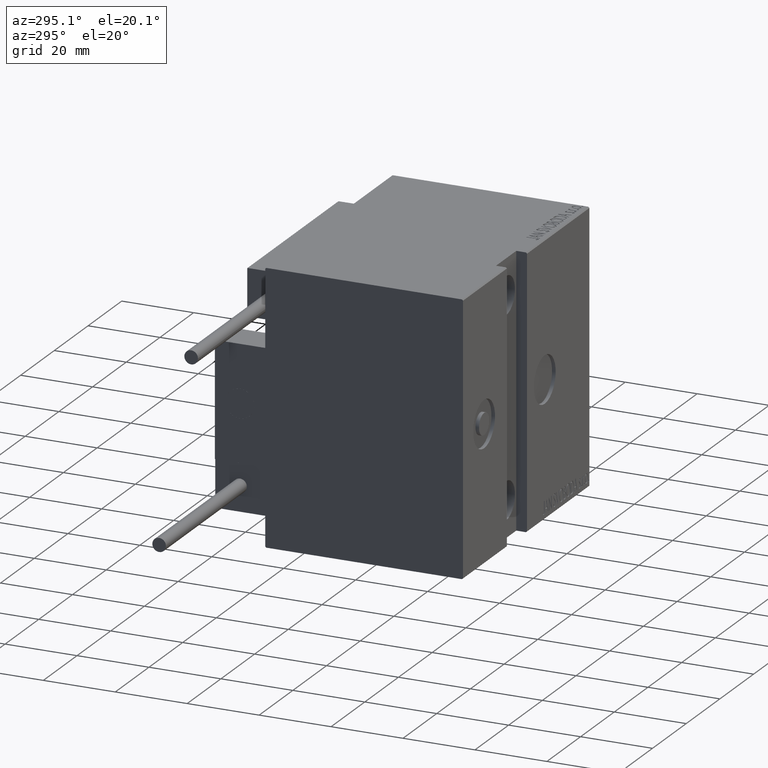
[diagram: clean part render]
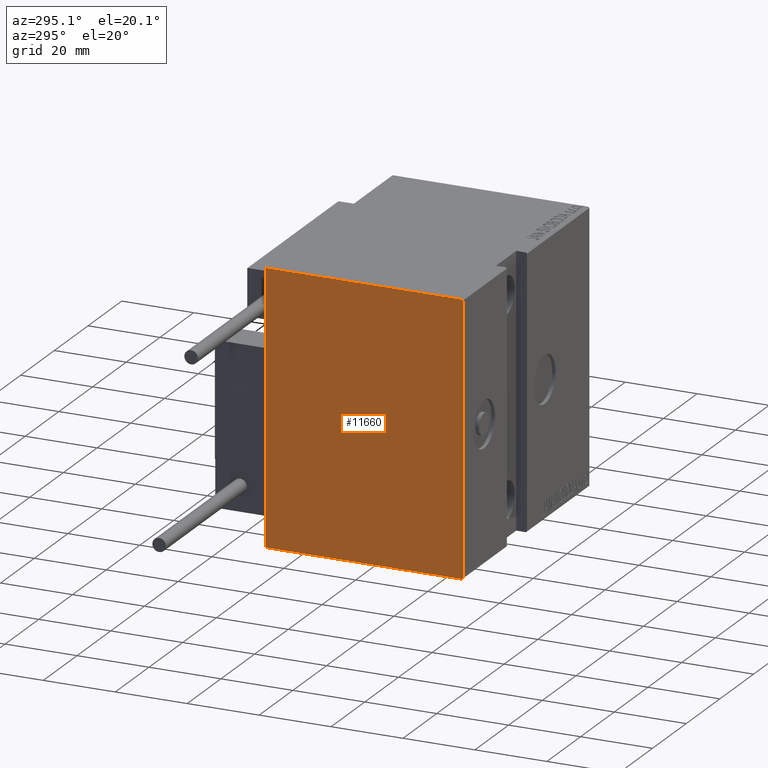
[diagram: same view with one face highlighted and labeled with its STEP entity id]
A machine part, auxiliary view. The second image highlights one B-rep face of the part: STEP entity #11660.
In plain terms, the highlighted planar face has unit normal (-1, 0, 0).
Its self-contained STEP definition (entity closure, byte-faithful):
#897 = EDGE_CURVE ( 'NONE', #25654, #10043, #5686, .T. ) ;
#1547 = VERTEX_POINT ( 'NONE', #36604 ) ;
#1871 = DIRECTION ( 'NONE',  ( 0.000000000000000000, 0.000000000000000000, -1.000000000000000000 ) ) ;
#2066 = CARTESIAN_POINT ( 'NONE',  ( 75.00000000000000000, -32.34999999999983800, 32.35000000000021458 ) ) ;
#2413 = VERTEX_POINT ( 'NONE', #43234 ) ;
#2478 = VECTOR ( 'NONE', #17153, 1000.000000000000000 ) ;
#2761 = EDGE_CURVE ( 'NONE', #10043, #27227, #7755, .T. ) ;
#3023 = EDGE_CURVE ( 'NONE', #5045, #25654, #30017, .T. ) ;
#3474 = DIRECTION ( 'NONE',  ( 0.000000000000000000, 0.000000000000000000, -1.000000000000000000 ) ) ;
#3713 = CARTESIAN_POINT ( 'NONE',  ( 75.00000000000000000, -27.50000000000000000, 37.49999999999999289 ) ) ;
#3941 = ORIENTED_EDGE ( 'NONE', *, *, #897, .T. ) ;
#5045 = VERTEX_POINT ( 'NONE', #40377 ) ;
#5167 = LINE ( 'NONE', #5904, #2478 ) ;
#5686 = LINE ( 'NONE', #30192, #45226 ) ;
#5836 = LINE ( 'NONE', #32877, #17830 ) ;
#5904 = CARTESIAN_POINT ( 'NONE',  ( 75.00000000000000000, 27.49999999999999645, 37.50000000000000711 ) ) ;
#6299 = VECTOR ( 'NONE', #24935, 1000.000000000000000 ) ;
#7755 = LINE ( 'NONE', #42067, #30260 ) ;
#9822 = DIRECTION ( 'NONE',  ( 0.000000000000000000, -0.7071067811865515695, -0.7071067811865435759 ) ) ;
#9975 = VERTEX_POINT ( 'NONE', #33522 ) ;
#10043 = VERTEX_POINT ( 'NONE', #42502 ) ;
#11660 = ADVANCED_FACE ( 'NONE', ( #36402 ), #32648, .T. ) ;
#12236 = EDGE_CURVE ( 'NONE', #2413, #1547, #46239, .T. ) ;
#13523 = ORIENTED_EDGE ( 'NONE', *, *, #25399, .T. ) ;
#14989 = EDGE_CURVE ( 'NONE', #9975, #5045, #47866, .T. ) ;
#16178 = DIRECTION ( 'NONE',  ( -0.000000000000000000, -0.7071067811865474617, 0.7071067811865474617 ) ) ;
#16305 = AXIS2_PLACEMENT_3D ( 'NONE', #17585, #16600, #1871 ) ;
#16600 = DIRECTION ( 'NONE',  ( 1.000000000000000000, 0.000000000000000000, 0.000000000000000000 ) ) ;
#17153 = DIRECTION ( 'NONE',  ( 0.000000000000000000, -1.000000000000000000, -2.523234146875355998E-16 ) ) ;
#17585 = CARTESIAN_POINT ( 'NONE',  ( 75.00000000000000000, 0.000000000000000000, 0.000000000000000000 ) ) ;
#17830 = VECTOR ( 'NONE', #44375, 1000.000000000000000 ) ;
#21365 = EDGE_LOOP ( 'NONE', ( #42839, #43623, #47152, #24726, #13523, #41028, #27816, #3941 ) ) ;
#24196 = LINE ( 'NONE', #39984, #6299 ) ;
#24726 = ORIENTED_EDGE ( 'NONE', *, *, #12236, .T. ) ;
#24935 = DIRECTION ( 'NONE',  ( 0.000000000000000000, -9.251858538542970348E-17, 1.000000000000000000 ) ) ;
#25399 = EDGE_CURVE ( 'NONE', #1547, #9975, #5167, .T. ) ;
#25654 = VERTEX_POINT ( 'NONE', #41871 ) ;
#27227 = VERTEX_POINT ( 'NONE', #45941 ) ;
#27430 = VECTOR ( 'NONE', #16178, 1000.000000000000114 ) ;
#27816 = ORIENTED_EDGE ( 'NONE', *, *, #3023, .T. ) ;
#28236 = EDGE_CURVE ( 'NONE', #27227, #36647, #5836, .T. ) ;
#30017 = LINE ( 'NONE', #3713, #31543 ) ;
#30192 = CARTESIAN_POINT ( 'NONE',  ( 75.00000000000000000, -32.34999999999999432, -32.34999999999999432 ) ) ;
#30260 = VECTOR ( 'NONE', #45812, 1000.000000000000000 ) ;
#30565 = VECTOR ( 'NONE', #9822, 999.9999999999998863 ) ;
#31543 = VECTOR ( 'NONE', #3474, 1000.000000000000000 ) ;
#32648 = PLANE ( 'NONE',  #16305 ) ;
#32877 = CARTESIAN_POINT ( 'NONE',  ( 75.00000000000000000, 32.35000000000016485, -32.34999999999978826 ) ) ;
#33522 = CARTESIAN_POINT ( 'NONE',  ( 75.00000000000000000, -27.20000000000000284, 37.49999999999999289 ) ) ;
#34162 = EDGE_CURVE ( 'NONE', #36647, #2413, #24196, .T. ) ;
#36402 = FACE_OUTER_BOUND ( 'NONE', #21365, .T. ) ;
#36604 = CARTESIAN_POINT ( 'NONE',  ( 75.00000000000000000, 27.20000000000000284, 37.50000000000000711 ) ) ;
#36647 = VERTEX_POINT ( 'NONE', #46955 ) ;
#39984 = CARTESIAN_POINT ( 'NONE',  ( 75.00000000000000000, 27.50000000000000355, -37.50000000000000711 ) ) ;
#40377 = CARTESIAN_POINT ( 'NONE',  ( 75.00000000000000000, -27.50000000000000000, 37.19999999999999574 ) ) ;
#41028 = ORIENTED_EDGE ( 'NONE', *, *, #14989, .T. ) ;
#41709 = DIRECTION ( 'NONE',  ( -0.000000000000000000, 0.7071067811865474617, -0.7071067811865474617 ) ) ;
#41871 = CARTESIAN_POINT ( 'NONE',  ( 75.00000000000000000, -27.50000000000000000, -37.19999999999999574 ) ) ;
#42067 = CARTESIAN_POINT ( 'NONE',  ( 75.00000000000000000, -27.50000000000000000, -37.50000000000000711 ) ) ;
#42502 = CARTESIAN_POINT ( 'NONE',  ( 75.00000000000000000, -27.19999999999999218, -37.50000000000000711 ) ) ;
#42736 = CARTESIAN_POINT ( 'NONE',  ( 75.00000000000000000, 32.35000000000000142, 32.35000000000000142 ) ) ;
#42839 = ORIENTED_EDGE ( 'NONE', *, *, #2761, .T. ) ;
#43234 = CARTESIAN_POINT ( 'NONE',  ( 75.00000000000000000, 27.49999999999999645, 37.20000000000000995 ) ) ;
#43623 = ORIENTED_EDGE ( 'NONE', *, *, #28236, .T. ) ;
#44375 = DIRECTION ( 'NONE',  ( -0.000000000000000000, 0.7071067811865434649, 0.7071067811865516806 ) ) ;
#45226 = VECTOR ( 'NONE', #41709, 1000.000000000000114 ) ;
#45812 = DIRECTION ( 'NONE',  ( 0.000000000000000000, 1.000000000000000000, 0.000000000000000000 ) ) ;
#45941 = CARTESIAN_POINT ( 'NONE',  ( 75.00000000000000000, 27.19999999999999929, -37.50000000000000711 ) ) ;
#46239 = LINE ( 'NONE', #42736, #27430 ) ;
#46955 = CARTESIAN_POINT ( 'NONE',  ( 75.00000000000000000, 27.50000000000000355, -37.19999999999999574 ) ) ;
#47152 = ORIENTED_EDGE ( 'NONE', *, *, #34162, .T. ) ;
#47866 = LINE ( 'NONE', #2066, #30565 ) ;